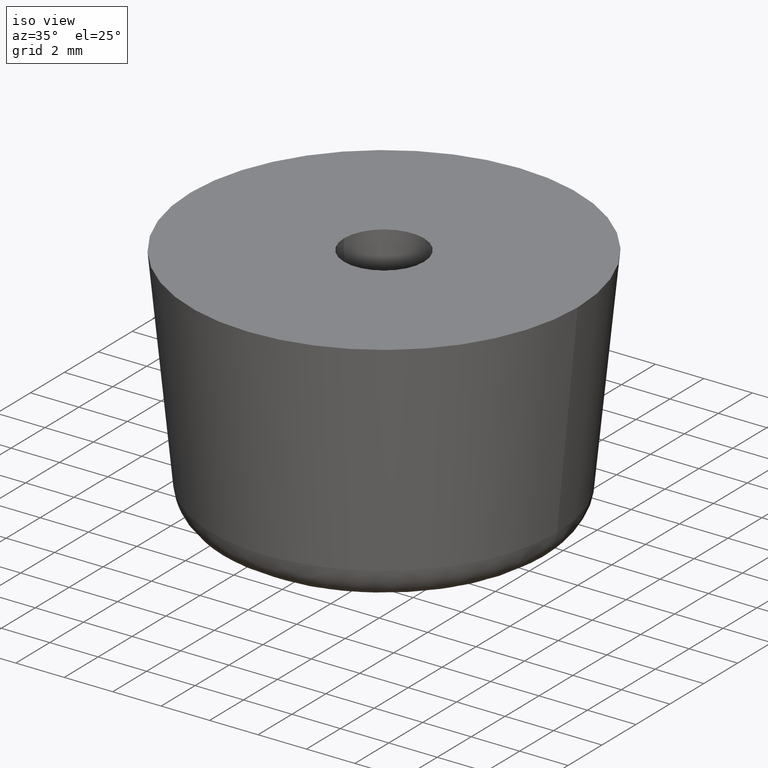
[diagram: clean part render]
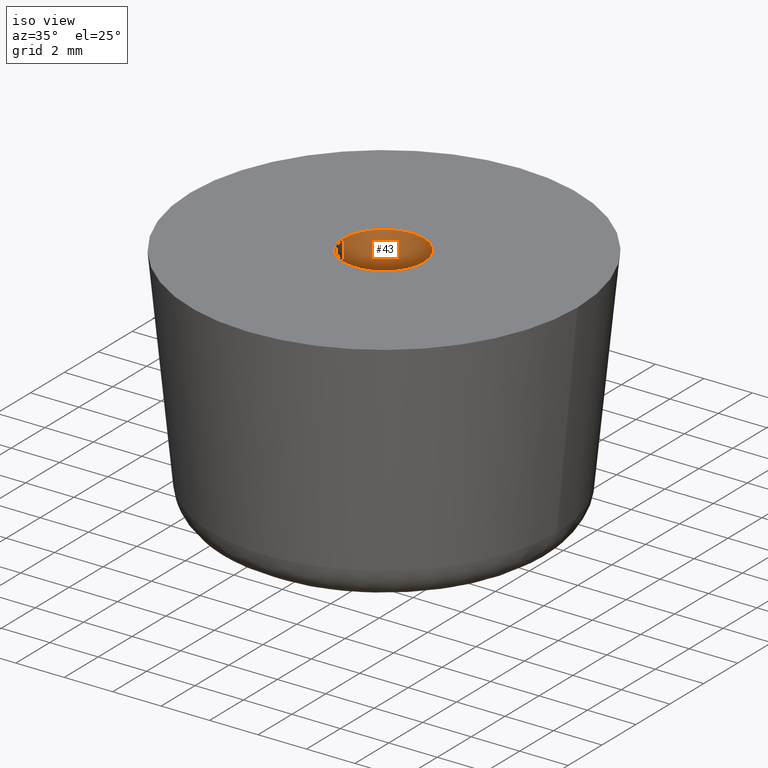
[diagram: same view with one face highlighted and labeled with its STEP entity id]
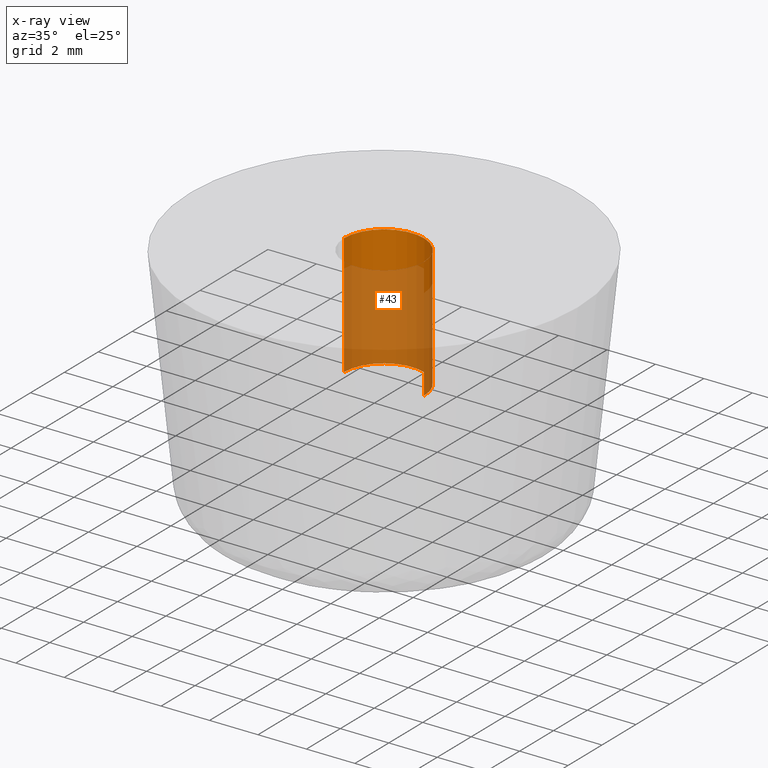
[diagram: x-ray of the same camera — body ghosted, the highlighted face saturated]
A machine part, iso view. The second image highlights one B-rep face of the part: STEP entity #43.
The next image is the same camera in x-ray: the body ghosted, the highlighted face saturated — about 72% of this face is hidden behind the body in this view.
In plain terms, the highlighted cylindrical surface (partial cylindrical patch) has radius 1.65 mm, axis along (0, -0, 1).
Its self-contained STEP definition (entity closure, byte-faithful):
#43=ADVANCED_FACE('',(#85),#84,.F.);
#84=CYLINDRICAL_SURFACE('',#185,1.65000000000E+00);
#85=FACE_OUTER_BOUND('',#186,.T.);
#182=CARTESIAN_POINT('',(1.42108547152E-14,0.00000000000E+00,0.00000000000E+00));
#183=DIRECTION('',(0.00000000000E+00,-0.00000000000E+00,1.00000000000E+00));
#184=DIRECTION('',(1.00000000000E+00,-0.00000000000E+00,-0.00000000000E+00));
#185=AXIS2_PLACEMENT_3D('',#182,#183,#184);
#186=EDGE_LOOP('',(#288,#289,#290,#291));
#288=ORIENTED_EDGE('',*,*,#323,.T.);
#289=ORIENTED_EDGE('',*,*,#332,.T.);
#290=ORIENTED_EDGE('',*,*,#330,.F.);
#291=ORIENTED_EDGE('',*,*,#333,.F.);
#323=EDGE_CURVE('',#357,#356,#364,.T.);
#330=EDGE_CURVE('',#412,#413,#414,.T.);
#332=EDGE_CURVE('',#356,#413,#426,.T.);
#333=EDGE_CURVE('',#357,#412,#432,.T.);
#356=VERTEX_POINT('',#498);
#357=VERTEX_POINT('',#499);
#364=CIRCLE('',#507,1.65000000000E+00);
#412=VERTEX_POINT('',#538);
#413=VERTEX_POINT('',#539);
#414=CIRCLE('',#543,1.65000000000E+00);
#426=(BOUNDED_CURVE() B_SPLINE_CURVE(1,(#548,#549),.UNSPECIFIED.,.F.,.F.) B_SPLINE_CURVE_WITH_KNOTS((2,2),(8.33333283663E-02,9.16666663731E-01),.UNSPECIFIED.) CURVE() GEOMETRIC_REPRESENTATION_ITEM() RATIONAL_B_SPLINE_CURVE((1.00000000000E+00,1.00000000000E+00)) REPRESENTATION_ITEM('') );
#432=(BOUNDED_CURVE() B_SPLINE_CURVE(1,(#550,#551),.UNSPECIFIED.,.F.,.F.) B_SPLINE_CURVE_WITH_KNOTS((2,2),(8.33333333333E-02,9.16666666667E-01),.UNSPECIFIED.) CURVE() GEOMETRIC_REPRESENTATION_ITEM() RATIONAL_B_SPLINE_CURVE((7.50000000000E-01,7.50000000000E-01)) REPRESENTATION_ITEM('') );
#498=CARTESIAN_POINT('',(1.65000000000E+00,7.40148683083E-17,-5.00000000000E+00));
#499=CARTESIAN_POINT('',(-1.65000000000E+00,0.00000000000E+00,-5.00000000000E+00));
#504=CARTESIAN_POINT('',(1.42108547152E-14,0.00000000000E+00,-5.00000000000E+00));
#505=DIRECTION('',(-0.00000000000E+00,0.00000000000E+00,-1.00000000000E+00));
#506=DIRECTION('',(-1.00000000000E+00,-1.22460635382E-16,0.00000000000E+00));
#507=AXIS2_PLACEMENT_3D('',#504,#505,#506);
#538=CARTESIAN_POINT('',(-1.65000000000E+00,0.00000000000E+00,0.00000000000E+00));
#539=CARTESIAN_POINT('',(1.65000000000E+00,7.40148683083E-17,0.00000000000E+00));
#540=CARTESIAN_POINT('',(1.42108547152E-14,0.00000000000E+00,0.00000000000E+00));
#541=DIRECTION('',(-0.00000000000E+00,0.00000000000E+00,-1.00000000000E+00));
#542=DIRECTION('',(-1.00000000000E+00,-1.22460635382E-16,0.00000000000E+00));
#543=AXIS2_PLACEMENT_3D('',#540,#541,#542);
#548=CARTESIAN_POINT('',(1.65000000000E+00,0.00000000000E+00,-5.00000002980E+00));
#549=CARTESIAN_POINT('',(1.65000000000E+00,0.00000000000E+00,-1.76110085959E-08));
#550=CARTESIAN_POINT('',(-1.65000000000E+00,0.00000000000E+00,-5.00000000000E+00));
#551=CARTESIAN_POINT('',(-1.65000000000E+00,0.00000000000E+00,3.70074341542E-16));